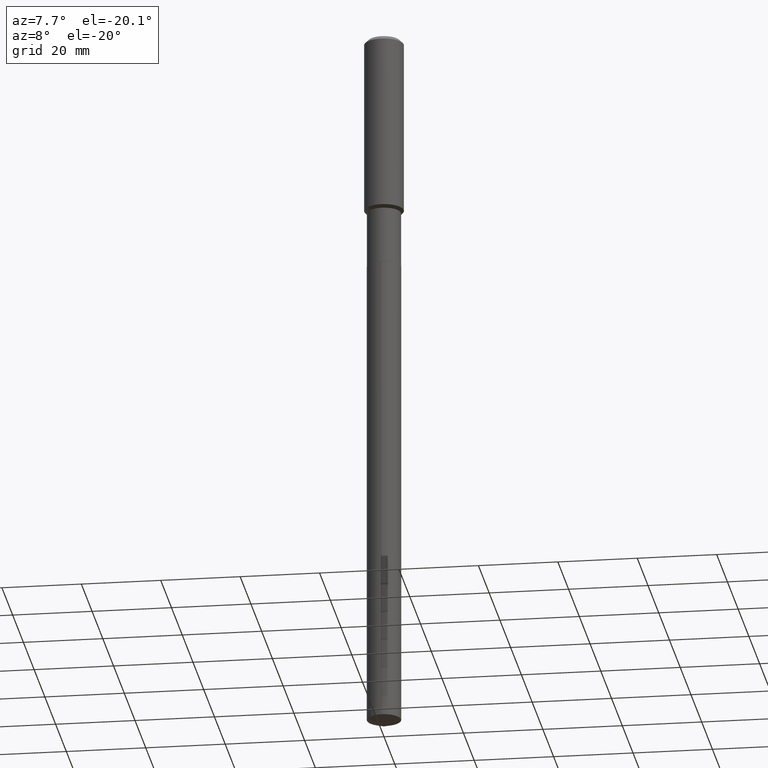
[diagram: clean part render]
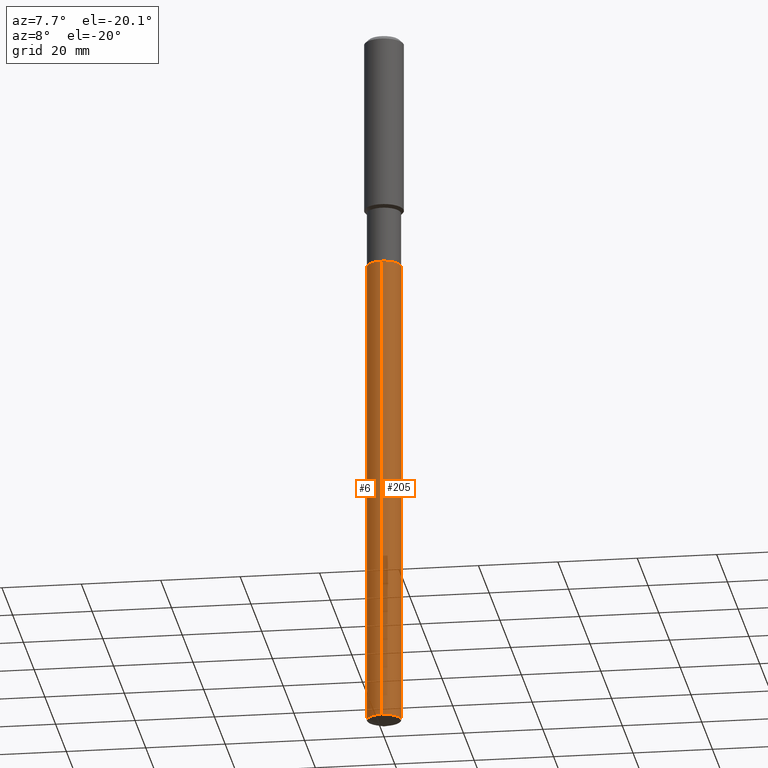
[diagram: same view with one multi-face feature highlighted, each face labeled with its STEP entity id]
A machine part, auxiliary view. The highlighted faces form ONE feature: a constant-radius fillet chain: 2 tangent blend faces with common blend radius 4.3002 mm. The faces share edges in the B-rep.
Their STEP definitions:
[1] entity #6 (Cylinder):
#3 = CARTESIAN_POINT ( 'NONE',  ( 1.202948851642023404E-15, 0.1692999999999752758, -7.098310956478392164 ) ) ;
#6 = ADVANCED_FACE ( 'NONE', ( #391 ), #267, .T. ) ;
#26 = AXIS2_PLACEMENT_3D ( 'NONE', #264, #107, #159 ) ;
#28 = VERTEX_POINT ( 'NONE', #3 ) ;
#34 = CARTESIAN_POINT ( 'NONE',  ( 1.735857678441068826E-28, -2.478379385907393533E-14, -7.098310956478391276 ) ) ;
#38 = DIRECTION ( 'NONE',  ( -2.445443231132570637E-29, 3.491517963774061595E-15, 1.000000000000000000 ) ) ;
#52 = AXIS2_PLACEMENT_3D ( 'NONE', #123, #323, #367 ) ;
#64 = EDGE_CURVE ( 'NONE', #306, #231, #167, .T. ) ;
#70 = ORIENTED_EDGE ( 'NONE', *, *, #475, .F. ) ;
#77 = CARTESIAN_POINT ( 'NONE',  ( -1.182215581332227426E-15, -0.1693000000000082494, -2.357899999999998997 ) ) ;
#84 = CIRCLE ( 'NONE', #145, 0.1693000000000000338 ) ;
#87 = DIRECTION ( 'NONE',  ( -2.445443231132570637E-29, 3.491517963774061595E-15, 1.000000000000000000 ) ) ;
#107 = DIRECTION ( 'NONE',  ( -2.445443231132570637E-29, 3.491517963774061595E-15, 1.000000000000000000 ) ) ;
#123 = CARTESIAN_POINT ( 'NONE',  ( 5.766170898103932109E-29, -8.232563848858250751E-15, -2.357899999999999441 ) ) ;
#145 = AXIS2_PLACEMENT_3D ( 'NONE', #34, #38, #490 ) ;
#159 = DIRECTION ( 'NONE',  ( -6.982962677686265922E-15, -1.000000000000000000, 3.227227399485248397E-15 ) ) ;
#167 = LINE ( 'NONE', #321, #485 ) ;
#190 = VECTOR ( 'NONE', #463, 39.37007874015748143 ) ;
#195 = ORIENTED_EDGE ( 'NONE', *, *, #381, .F. ) ;
#196 = LINE ( 'NONE', #198, #190 ) ;
#198 = CARTESIAN_POINT ( 'NONE',  ( 1.202948851641907244E-15, 0.1692999999999917904, -2.357899999999999885 ) ) ;
#214 = EDGE_CURVE ( 'NONE', #28, #306, #84, .T. ) ;
#231 = VERTEX_POINT ( 'NONE', #77 ) ;
#264 = CARTESIAN_POINT ( 'NONE',  ( 5.766170898103932109E-29, -8.232563848858250751E-15, -2.357899999999999441 ) ) ;
#267 = CYLINDRICAL_SURFACE ( 'NONE', #26, 0.1693000000000000338 ) ;
#285 = CARTESIAN_POINT ( 'NONE',  ( -1.182215581332111660E-15, -0.1693000000000248473, -7.098310956478389500 ) ) ;
#290 = CARTESIAN_POINT ( 'NONE',  ( 1.202948851642024193E-15, 0.1692999999999917904, -2.357899999999999885 ) ) ;
#300 = ORIENTED_EDGE ( 'NONE', *, *, #64, .T. ) ;
#306 = VERTEX_POINT ( 'NONE', #285 ) ;
#321 = CARTESIAN_POINT ( 'NONE',  ( -1.182215581332227426E-15, -0.1693000000000082494, -2.357899999999998997 ) ) ;
#323 = DIRECTION ( 'NONE',  ( -2.445443231132570637E-29, 3.491517963774061595E-15, 1.000000000000000000 ) ) ;
#367 = DIRECTION ( 'NONE',  ( -6.982962677686265922E-15, -1.000000000000000000, 3.227227399485248397E-15 ) ) ;
#381 = EDGE_CURVE ( 'NONE', #395, #231, #439, .T. ) ;
#391 = FACE_OUTER_BOUND ( 'NONE', #418, .T. ) ;
#395 = VERTEX_POINT ( 'NONE', #290 ) ;
#418 = EDGE_LOOP ( 'NONE', ( #70, #480, #300, #195 ) ) ;
#439 = CIRCLE ( 'NONE', #52, 0.1693000000000000338 ) ;
#463 = DIRECTION ( 'NONE',  ( -2.445443231132570637E-29, 3.491517963774061595E-15, 1.000000000000000000 ) ) ;
#475 = EDGE_CURVE ( 'NONE', #28, #395, #196, .T. ) ;
#480 = ORIENTED_EDGE ( 'NONE', *, *, #214, .T. ) ;
#485 = VECTOR ( 'NONE', #87, 39.37007874015748143 ) ;
#490 = DIRECTION ( 'NONE',  ( -6.982962677686265922E-15, -1.000000000000000000, 6.454454798970496795E-15 ) ) ;
[2] entity #205 (Cylinder):
#3 = CARTESIAN_POINT ( 'NONE',  ( 1.202948851642023404E-15, 0.1692999999999752758, -7.098310956478392164 ) ) ;
#28 = VERTEX_POINT ( 'NONE', #3 ) ;
#44 = ORIENTED_EDGE ( 'NONE', *, *, #64, .F. ) ;
#64 = EDGE_CURVE ( 'NONE', #306, #231, #167, .T. ) ;
#77 = CARTESIAN_POINT ( 'NONE',  ( -1.182215581332227426E-15, -0.1693000000000082494, -2.357899999999998997 ) ) ;
#87 = DIRECTION ( 'NONE',  ( -2.445443231132570637E-29, 3.491517963774061595E-15, 1.000000000000000000 ) ) ;
#100 = CIRCLE ( 'NONE', #356, 0.1693000000000000338 ) ;
#103 = CIRCLE ( 'NONE', #220, 0.1693000000000000338 ) ;
#149 = EDGE_CURVE ( 'NONE', #306, #28, #100, .T. ) ;
#150 = DIRECTION ( 'NONE',  ( -6.982962677686265922E-15, -1.000000000000000000, 6.454454798970496795E-15 ) ) ;
#167 = LINE ( 'NONE', #321, #485 ) ;
#173 = EDGE_LOOP ( 'NONE', ( #293, #218, #215, #44 ) ) ;
#179 = DIRECTION ( 'NONE',  ( -2.445443231132570637E-29, 3.491517963774061595E-15, 1.000000000000000000 ) ) ;
#188 = FACE_OUTER_BOUND ( 'NONE', #173, .T. ) ;
#190 = VECTOR ( 'NONE', #463, 39.37007874015748143 ) ;
#196 = LINE ( 'NONE', #198, #190 ) ;
#198 = CARTESIAN_POINT ( 'NONE',  ( 1.202948851641907244E-15, 0.1692999999999917904, -2.357899999999999885 ) ) ;
#205 = ADVANCED_FACE ( 'NONE', ( #188 ), #317, .T. ) ;
#215 = ORIENTED_EDGE ( 'NONE', *, *, #270, .F. ) ;
#218 = ORIENTED_EDGE ( 'NONE', *, *, #475, .T. ) ;
#220 = AXIS2_PLACEMENT_3D ( 'NONE', #221, #179, #266 ) ;
#221 = CARTESIAN_POINT ( 'NONE',  ( 5.766170898103932109E-29, -8.232563848858250751E-15, -2.357899999999999441 ) ) ;
#231 = VERTEX_POINT ( 'NONE', #77 ) ;
#266 = DIRECTION ( 'NONE',  ( -6.982962677686265922E-15, -1.000000000000000000, 3.227227399485248397E-15 ) ) ;
#270 = EDGE_CURVE ( 'NONE', #231, #395, #103, .T. ) ;
#271 = CARTESIAN_POINT ( 'NONE',  ( 5.766170898103932109E-29, -8.232563848858250751E-15, -2.357899999999999441 ) ) ;
#276 = DIRECTION ( 'NONE',  ( -2.445443231132570637E-29, 3.491517963774061595E-15, 1.000000000000000000 ) ) ;
#285 = CARTESIAN_POINT ( 'NONE',  ( -1.182215581332111660E-15, -0.1693000000000248473, -7.098310956478389500 ) ) ;
#290 = CARTESIAN_POINT ( 'NONE',  ( 1.202948851642024193E-15, 0.1692999999999917904, -2.357899999999999885 ) ) ;
#293 = ORIENTED_EDGE ( 'NONE', *, *, #149, .T. ) ;
#306 = VERTEX_POINT ( 'NONE', #285 ) ;
#307 = DIRECTION ( 'NONE',  ( -6.982962677686265922E-15, -1.000000000000000000, 3.227227399485248397E-15 ) ) ;
#317 = CYLINDRICAL_SURFACE ( 'NONE', #412, 0.1693000000000000338 ) ;
#321 = CARTESIAN_POINT ( 'NONE',  ( -1.182215581332227426E-15, -0.1693000000000082494, -2.357899999999998997 ) ) ;
#356 = AXIS2_PLACEMENT_3D ( 'NONE', #387, #415, #150 ) ;
#387 = CARTESIAN_POINT ( 'NONE',  ( 1.735857678441068826E-28, -2.478379385907393533E-14, -7.098310956478391276 ) ) ;
#395 = VERTEX_POINT ( 'NONE', #290 ) ;
#412 = AXIS2_PLACEMENT_3D ( 'NONE', #271, #276, #307 ) ;
#415 = DIRECTION ( 'NONE',  ( -2.445443231132570637E-29, 3.491517963774061595E-15, 1.000000000000000000 ) ) ;
#463 = DIRECTION ( 'NONE',  ( -2.445443231132570637E-29, 3.491517963774061595E-15, 1.000000000000000000 ) ) ;
#475 = EDGE_CURVE ( 'NONE', #28, #395, #196, .T. ) ;
#485 = VECTOR ( 'NONE', #87, 39.37007874015748143 ) ;